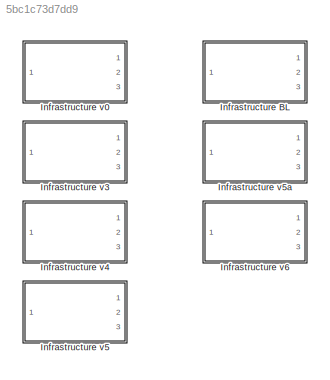
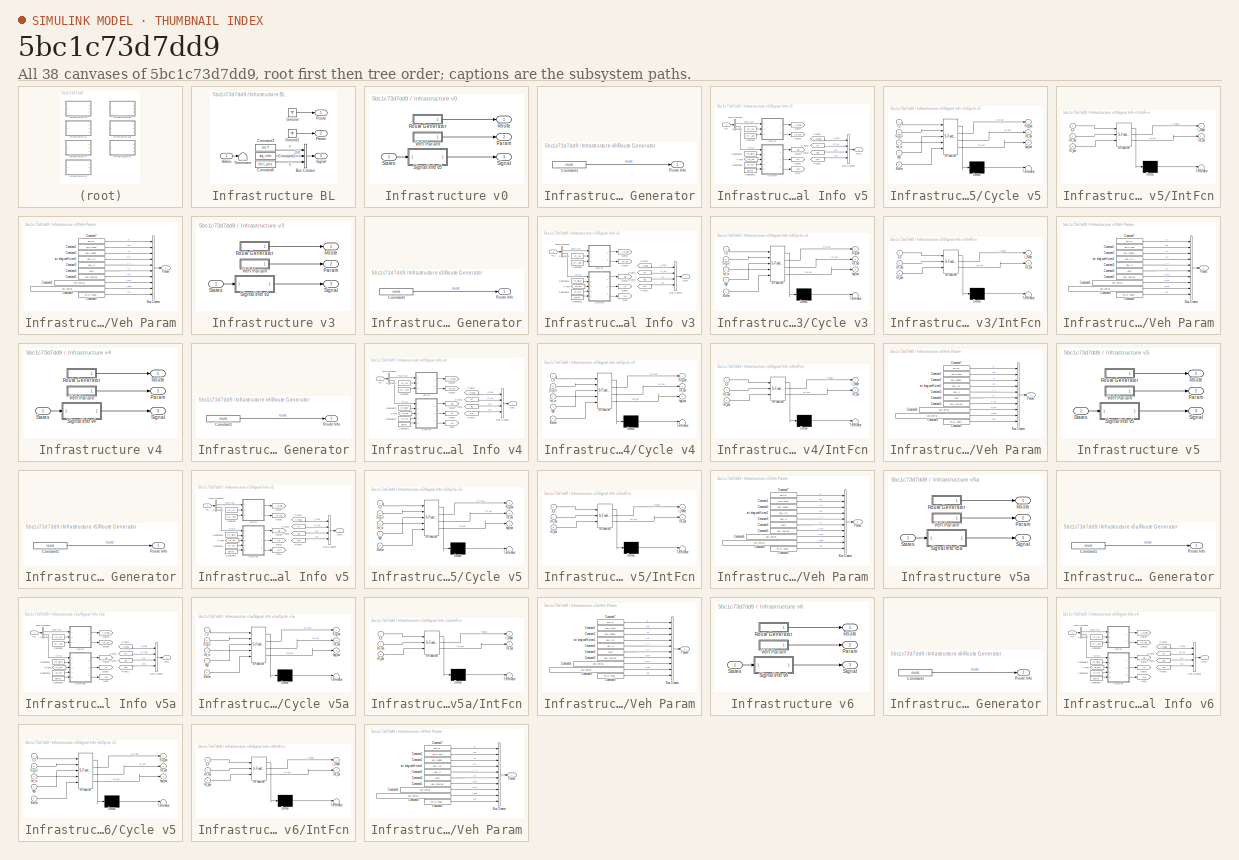
[diagram: thumbnail index - all 38 canvases of the model, root first then tree order]
MODEL slx_5bc1c73d7dd9
KIND library
CONFIG AbsTol = auto
CONFIG EnableMultiTasking = off
CONFIG FixedStep = auto
CONFIG MaxStep = auto
CONFIG MinStep = auto
CONFIG RelTol = 1e-3
CONFIG SampleTimeConstraint = Unconstrained
CONFIG Solver = VariableStepAuto
CONFIG SolverName = VariableStepAuto
CONFIG StartTime = 0.0
CONFIG StopTime = 10.0
BLOCK [SubSystem] Infrastructure BL
  Ports = [1, 3]
  RequestExecContextInheritance = off
  VariantControl = strcmpi(INFRASTRUCTURE,'BL')
BLOCK [BusCreator] Infrastructure BL/Bus Creator
  DisplayOption = bar
  InheritFromInputs = on
  Inputs = 3
  Ports = [3, 1]
BLOCK [Constant] Infrastructure BL/Constant1
  Value = sig_info
BLOCK [Constant] Infrastructure BL/Constant3
  Value = Int.Y
BLOCK [Constant] Infrastructure BL/Constant6
  Value = Int.I_pos
BLOCK [Ground] Infrastructure BL/Ground
BLOCK [Ground] Infrastructure BL/Ground1
BLOCK [Outport] Infrastructure BL/Param
  Port = 2
  VectorParamsAs1DForOutWhenUnconnected = off
BLOCK [Outport] Infrastructure BL/Route
  VectorParamsAs1DForOutWhenUnconnected = off
BLOCK [Outport] Infrastructure BL/Signal
  Port = 3
  VectorParamsAs1DForOutWhenUnconnected = off
BLOCK [Inport] Infrastructure BL/States
BLOCK [Terminator] Infrastructure BL/Terminator
BLOCK [SubSystem] Infrastructure v0
  Ports = [1, 3]
  RequestExecContextInheritance = off
  VariantControl = strcmpi(INFRASTRUCTURE,'MPC_v0')
BLOCK [Outport] Infrastructure v0/Param
  Port = 2
  VectorParamsAs1DForOutWhenUnconnected = off
BLOCK [Outport] Infrastructure v0/Route
  VectorParamsAs1DForOutWhenUnconnected = off
BLOCK [SubSystem] Infrastructure v0/Route Generator
  Ports = [0, 1]
  RequestExecContextInheritance = off
BLOCK [Constant] Infrastructure v0/Route Generator/Constant1
  Value = route
BLOCK [Outport] Infrastructure v0/Route Generator/Route Info
  VectorParamsAs1DForOutWhenUnconnected = off
BLOCK [Outport] Infrastructure v0/Signal
  Port = 3
  VectorParamsAs1DForOutWhenUnconnected = off
BLOCK [SubSystem] Infrastructure v0/Signal Info v5
  Ports = [1, 1]
  RequestExecContextInheritance = off
BLOCK [BusCreator] Infrastructure v0/Signal Info v5/Bus Creator
  DisplayOption = bar
  InheritFromInputs = on
  Inputs = 4
  Ports = [4, 1]
BLOCK [BusSelector] Infrastructure v0/Signal Info v5/Bus Selector
  OutputSignals = Position,Time
  Ports = [1, 2]
BLOCK [Constant] Infrastructure v0/Signal Info v5/Constant
  Value = Int.I_pos
BLOCK [Constant] Infrastructure v0/Signal Info v5/Constant1
  Value = Buffer
BLOCK [Constant] Infrastructure v0/Signal Info v5/Constant2
  Value = Int.Sig_in
BLOCK [Constant] Infrastructure v0/Signal Info v5/Constant3
  Value = Int.hyp
BLOCK [Constant] Infrastructure v0/Signal Info v5/Constant4
  Value = Int_ran
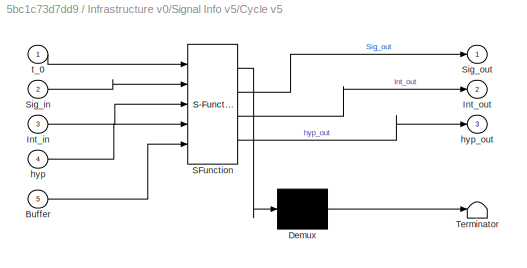
BLOCK [SubSystem] Infrastructure v0/Signal Info v5/Cycle v5
  ErrorFcn = Stateflow.Translate.translate
  PermitHierarchicalResolution = ExplicitOnly
  Ports = [5, 3]
  RequestExecContextInheritance = off
  SFBlockType = MATLAB Function
  TreatAsAtomicUnit = on
BLOCK [Demux] Infrastructure v0/Signal Info v5/Cycle v5/ Demux 
  Outputs = 1
  Ports = [1, 1]
BLOCK [S-Function] Infrastructure v0/Signal Info v5/Cycle v5/ SFunction 
  EnableBusSupport = off
  FunctionName = sf_sfun
  PortCounts = [5 4]
  Ports = [5, 4]
  SFcnIsStateOwnerBlock = off
  SFunctionDeploymentMode = off
  Tag = Stateflow S-Function 7
BLOCK [Terminator] Infrastructure v0/Signal Info v5/Cycle v5/ Terminator 
BLOCK [Inport] Infrastructure v0/Signal Info v5/Cycle v5/Buffer
  Port = 5
BLOCK [Inport] Infrastructure v0/Signal Info v5/Cycle v5/Int_in
  Port = 3
BLOCK [Outport] Infrastructure v0/Signal Info v5/Cycle v5/Int_out
  Port = 2
  VectorParamsAs1DForOutWhenUnconnected = off
BLOCK [Inport] Infrastructure v0/Signal Info v5/Cycle v5/Sig_in
  Port = 2
BLOCK [Outport] Infrastructure v0/Signal Info v5/Cycle v5/Sig_out
  VectorParamsAs1DForOutWhenUnconnected = off
BLOCK [Inport] Infrastructure v0/Signal Info v5/Cycle v5/hyp
  Port = 4
BLOCK [Outport] Infrastructure v0/Signal Info v5/Cycle v5/hyp_out
  Port = 3
  VectorParamsAs1DForOutWhenUnconnected = off
BLOCK [Inport] Infrastructure v0/Signal Info v5/Cycle v5/t_0
BLOCK [From] Infrastructure v0/Signal Info v5/From
  GotoTag = Int_out
BLOCK [From] Infrastructure v0/Signal Info v5/From1
  GotoTag = hyp
BLOCK [From] Infrastructure v0/Signal Info v5/From2
  GotoTag = I_mode
BLOCK [From] Infrastructure v0/Signal Info v5/From3
  GotoTag = sig
BLOCK [From] Infrastructure v0/Signal Info v5/From4
  GotoTag = Int
BLOCK [Goto] Infrastructure v0/Signal Info v5/Goto
  GotoTag = hyp
BLOCK [Goto] Infrastructure v0/Signal Info v5/Goto1
  GotoTag = Int
BLOCK [Goto] Infrastructure v0/Signal Info v5/Goto2
  GotoTag = sig
BLOCK [Goto] Infrastructure v0/Signal Info v5/Goto3
  GotoTag = Int_out
BLOCK [Goto] Infrastructure v0/Signal Info v5/Goto4
  GotoTag = I_mode
BLOCK [Inport] Infrastructure v0/Signal Info v5/In1
BLOCK [SubSystem] Infrastructure v0/Signal Info v5/IntFcn
  ErrorFcn = Stateflow.Translate.translate
  PermitHierarchicalResolution = ExplicitOnly
  Ports = [3, 2]
  RequestExecContextInheritance = off
  SFBlockType = MATLAB Function
  TreatAsAtomicUnit = on
BLOCK [Demux] Infrastructure v0/Signal Info v5/IntFcn/ Demux 
  Outputs = 1
  Ports = [1, 1]
BLOCK [S-Function] Infrastructure v0/Signal Info v5/IntFcn/ SFunction 
  EnableBusSupport = off
  FunctionName = sf_sfun
  PortCounts = [3 3]
  Ports = [3, 3]
  SFcnIsStateOwnerBlock = off
  SFunctionDeploymentMode = off
  Tag = Stateflow S-Function 8
BLOCK [Terminator] Infrastructure v0/Signal Info v5/IntFcn/ Terminator 
BLOCK [Outport] Infrastructure v0/Signal Info v5/IntFcn/I_mode
  VectorParamsAs1DForOutWhenUnconnected = off
BLOCK [Outport] Infrastructure v0/Signal Info v5/IntFcn/Int_out
  Port = 2
  VectorParamsAs1DForOutWhenUnconnected = off
BLOCK [Inport] Infrastructure v0/Signal Info v5/IntFcn/Int_pos
  Port = 3
BLOCK [Inport] Infrastructure v0/Signal Info v5/IntFcn/Int_ran
  Port = 2
BLOCK [Inport] Infrastructure v0/Signal Info v5/IntFcn/x_0
BLOCK [Outport] Infrastructure v0/Signal Info v5/Out1
  VectorParamsAs1DForOutWhenUnconnected = off
BLOCK [Inport] Infrastructure v0/States
BLOCK [SubSystem] Infrastructure v0/Veh Param
  Ports = [0, 1]
  RequestExecContextInheritance = off
BLOCK [BusCreator] Infrastructure v0/Veh Param/Bus Creator
  DisplayOption = bar
  InheritFromInputs = on
  Inputs = 10
  Ports = [10, 1]
BLOCK [Constant] Infrastructure v0/Veh Param/Constant1
  Value = ENV.rhoAir
BLOCK [Constant] Infrastructure v0/Veh Param/Constant2
  Value = VEH.vehicleMass
BLOCK [Constant] Infrastructure v0/Veh Param/Constant3
  Value = VEH.Af
BLOCK [Constant] Infrastructure v0/Veh Param/Constant4
  Value = .0057
BLOCK [Constant] Infrastructure v0/Veh Param/Constant5
  Value = VEH.tireRad
BLOCK [Constant] Infrastructure v0/Veh Param/Constant6
  Value = VEH.inertiaWheel+VEH.inertiaAxle
BLOCK [Constant] Infrastructure v0/Veh Param/Constant7
  Value = ENV.g
BLOCK [Constant] Infrastructure v0/Veh Param/Constant8
  Value = VEH.inertiaCrank+VEH.inertiaClutch+VEH.intertiaAux
BLOCK [Constant] Infrastructure v0/Veh Param/Constant9
  Value = TRAN.finalDrive
BLOCK [Outport] Infrastructure v0/Veh Param/Param
  VectorParamsAs1DForOutWhenUnconnected = off
BLOCK [Constant] Infrastructure v0/Veh Param/air drag coefficient1
  Value = VEH.Cd
BLOCK [SubSystem] Infrastructure v3
  Ports = [1, 3]
  RequestExecContextInheritance = off
  VariantControl = strcmpi(INFRASTRUCTURE,'MPC_GP_v3')
BLOCK [Outport] Infrastructure v3/Param
  Port = 2
  VectorParamsAs1DForOutWhenUnconnected = off
BLOCK [Outport] Infrastructure v3/Route
  VectorParamsAs1DForOutWhenUnconnected = off
BLOCK [SubSystem] Infrastructure v3/Route Generator
  Ports = [0, 1]
  RequestExecContextInheritance = off
BLOCK [Constant] Infrastructure v3/Route Generator/Constant1
  Value = route
BLOCK [Outport] Infrastructure v3/Route Generator/Route Info
  VectorParamsAs1DForOutWhenUnconnected = off
BLOCK [Outport] Infrastructure v3/Signal
  Port = 3
  VectorParamsAs1DForOutWhenUnconnected = off
BLOCK [SubSystem] Infrastructure v3/Signal Info v3
  Ports = [1, 1]
  RequestExecContextInheritance = off
BLOCK [BusCreator] Infrastructure v3/Signal Info v3/Bus Creator
  DisplayOption = bar
  InheritFromInputs = on
  Inputs = 4
  Ports = [4, 1]
BLOCK [BusSelector] Infrastructure v3/Signal Info v3/Bus Selector
  OutputSignals = Position,Time
  Ports = [1, 2]
BLOCK [Constant] Infrastructure v3/Signal Info v3/Constant
  Value = Int.I_pos
BLOCK [Constant] Infrastructure v3/Signal Info v3/Constant1
  Value = Buffer
BLOCK [Constant] Infrastructure v3/Signal Info v3/Constant2
  Value = Int.Sig_in
BLOCK [Constant] Infrastructure v3/Signal Info v3/Constant3
  Value = Int.hyp
BLOCK [Constant] Infrastructure v3/Signal Info v3/Constant4
  Value = Int_ran
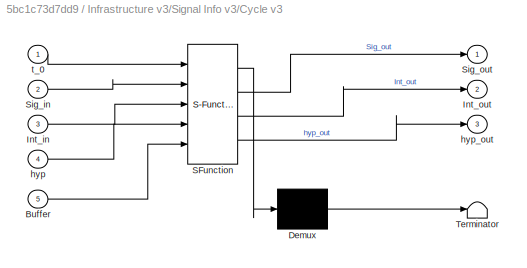
BLOCK [SubSystem] Infrastructure v3/Signal Info v3/Cycle v3
  ErrorFcn = Stateflow.Translate.translate
  PermitHierarchicalResolution = ExplicitOnly
  Ports = [5, 3]
  RequestExecContextInheritance = off
  SFBlockType = MATLAB Function
  TreatAsAtomicUnit = on
BLOCK [Demux] Infrastructure v3/Signal Info v3/Cycle v3/ Demux 
  Outputs = 1
  Ports = [1, 1]
BLOCK [S-Function] Infrastructure v3/Signal Info v3/Cycle v3/ SFunction 
  EnableBusSupport = off
  FunctionName = sf_sfun
  PortCounts = [5 4]
  Ports = [5, 4]
  SFcnIsStateOwnerBlock = off
  SFunctionDeploymentMode = off
  Tag = Stateflow S-Function 2
BLOCK [Terminator] Infrastructure v3/Signal Info v3/Cycle v3/ Terminator 
BLOCK [Inport] Infrastructure v3/Signal Info v3/Cycle v3/Buffer
  Port = 5
BLOCK [Inport] Infrastructure v3/Signal Info v3/Cycle v3/Int_in
  Port = 3
BLOCK [Outport] Infrastructure v3/Signal Info v3/Cycle v3/Int_out
  Port = 2
  VectorParamsAs1DForOutWhenUnconnected = off
BLOCK [Inport] Infrastructure v3/Signal Info v3/Cycle v3/Sig_in
  Port = 2
BLOCK [Outport] Infrastructure v3/Signal Info v3/Cycle v3/Sig_out
  VectorParamsAs1DForOutWhenUnconnected = off
BLOCK [Inport] Infrastructure v3/Signal Info v3/Cycle v3/hyp
  Port = 4
BLOCK [Outport] Infrastructure v3/Signal Info v3/Cycle v3/hyp_out
  Port = 3
  VectorParamsAs1DForOutWhenUnconnected = off
BLOCK [Inport] Infrastructure v3/Signal Info v3/Cycle v3/t_0
BLOCK [From] Infrastructure v3/Signal Info v3/From
  GotoTag = Int_out
BLOCK [From] Infrastructure v3/Signal Info v3/From1
  GotoTag = hyp
BLOCK [From] Infrastructure v3/Signal Info v3/From2
  GotoTag = I_mode
BLOCK [From] Infrastructure v3/Signal Info v3/From3
  GotoTag = sig
BLOCK [From] Infrastructure v3/Signal Info v3/From4
  GotoTag = Int
BLOCK [Goto] Infrastructure v3/Signal Info v3/Goto
  GotoTag = hyp
BLOCK [Goto] Infrastructure v3/Signal Info v3/Goto1
  GotoTag = Int
BLOCK [Goto] Infrastructure v3/Signal Info v3/Goto2
  GotoTag = sig
BLOCK [Goto] Infrastructure v3/Signal Info v3/Goto3
  GotoTag = Int_out
BLOCK [Goto] Infrastructure v3/Signal Info v3/Goto4
  GotoTag = I_mode
BLOCK [Inport] Infrastructure v3/Signal Info v3/In1
BLOCK [SubSystem] Infrastructure v3/Signal Info v3/IntFcn
  ErrorFcn = Stateflow.Translate.translate
  PermitHierarchicalResolution = ExplicitOnly
  Ports = [3, 2]
  RequestExecContextInheritance = off
  SFBlockType = MATLAB Function
  TreatAsAtomicUnit = on
BLOCK [Demux] Infrastructure v3/Signal Info v3/IntFcn/ Demux 
  Outputs = 1
  Ports = [1, 1]
BLOCK [S-Function] Infrastructure v3/Signal Info v3/IntFcn/ SFunction 
  EnableBusSupport = off
  FunctionName = sf_sfun
  PortCounts = [3 3]
  Ports = [3, 3]
  SFcnIsStateOwnerBlock = off
  SFunctionDeploymentMode = off
  Tag = Stateflow S-Function 1
BLOCK [Terminator] Infrastructure v3/Signal Info v3/IntFcn/ Terminator 
BLOCK [Outport] Infrastructure v3/Signal Info v3/IntFcn/I_mode
  VectorParamsAs1DForOutWhenUnconnected = off
BLOCK [Outport] Infrastructure v3/Signal Info v3/IntFcn/Int_out
  Port = 2
  VectorParamsAs1DForOutWhenUnconnected = off
BLOCK [Inport] Infrastructure v3/Signal Info v3/IntFcn/Int_pos
  Port = 3
BLOCK [Inport] Infrastructure v3/Signal Info v3/IntFcn/Int_ran
  Port = 2
BLOCK [Inport] Infrastructure v3/Signal Info v3/IntFcn/x_0
BLOCK [Outport] Infrastructure v3/Signal Info v3/Out1
  VectorParamsAs1DForOutWhenUnconnected = off
BLOCK [Inport] Infrastructure v3/States
BLOCK [SubSystem] Infrastructure v3/Veh Param
  Ports = [0, 1]
  RequestExecContextInheritance = off
BLOCK [BusCreator] Infrastructure v3/Veh Param/Bus Creator
  DisplayOption = bar
  InheritFromInputs = on
  Inputs = 10
  Ports = [10, 1]
BLOCK [Constant] Infrastructure v3/Veh Param/Constant1
  Value = ENV.rhoAir
BLOCK [Constant] Infrastructure v3/Veh Param/Constant2
  Value = VEH.vehicleMass
BLOCK [Constant] Infrastructure v3/Veh Param/Constant3
  Value = VEH.Af
BLOCK [Constant] Infrastructure v3/Veh Param/Constant4
  Value = .0057
BLOCK [Constant] Infrastructure v3/Veh Param/Constant5
  Value = VEH.tireRad
BLOCK [Constant] Infrastructure v3/Veh Param/Constant6
  Value = VEH.inertiaWheel+VEH.inertiaAxle
BLOCK [Constant] Infrastructure v3/Veh Param/Constant7
  Value = ENV.g
BLOCK [Constant] Infrastructure v3/Veh Param/Constant8
  Value = VEH.inertiaCrank+VEH.inertiaClutch+VEH.intertiaAux
BLOCK [Constant] Infrastructure v3/Veh Param/Constant9
  Value = TRAN.finalDrive
BLOCK [Outport] Infrastructure v3/Veh Param/Param
  VectorParamsAs1DForOutWhenUnconnected = off
BLOCK [Constant] Infrastructure v3/Veh Param/air drag coefficient1
  Value = VEH.Cd
BLOCK [SubSystem] Infrastructure v4
  Ports = [1, 3]
  RequestExecContextInheritance = off
BLOCK [Outport] Infrastructure v4/Param
  Port = 2
  VectorParamsAs1DForOutWhenUnconnected = off
BLOCK [Outport] Infrastructure v4/Route
  VectorParamsAs1DForOutWhenUnconnected = off
BLOCK [SubSystem] Infrastructure v4/Route Generator
  Ports = [0, 1]
  RequestExecContextInheritance = off
BLOCK [Constant] Infrastructure v4/Route Generator/Constant1
  Value = route
BLOCK [Outport] Infrastructure v4/Route Generator/Route Info
  VectorParamsAs1DForOutWhenUnconnected = off
BLOCK [Outport] Infrastructure v4/Signal
  Port = 3
  VectorParamsAs1DForOutWhenUnconnected = off
BLOCK [SubSystem] Infrastructure v4/Signal Info v4
  Ports = [1, 1]
  RequestExecContextInheritance = off
BLOCK [BusCreator] Infrastructure v4/Signal Info v4/Bus Creator
  DisplayOption = bar
  InheritFromInputs = on
  Inputs = 4
  Ports = [4, 1]
BLOCK [BusSelector] Infrastructure v4/Signal Info v4/Bus Selector
  OutputSignals = Position,Time
  Ports = [1, 2]
BLOCK [Constant] Infrastructure v4/Signal Info v4/Constant
  Value = Int.I_pos
BLOCK [Constant] Infrastructure v4/Signal Info v4/Constant1
  Value = Buffer
BLOCK [Constant] Infrastructure v4/Signal Info v4/Constant2
  Value = Int.Sig_in
BLOCK [Constant] Infrastructure v4/Signal Info v4/Constant3
  Value = Int.hyp
BLOCK [Constant] Infrastructure v4/Signal Info v4/Constant4
  Value = Int_ran
BLOCK [SubSystem] Infrastructure v4/Signal Info v4/Cycle v4
  ErrorFcn = Stateflow.Translate.translate
  PermitHierarchicalResolution = ExplicitOnly
  Ports = [5, 3]
  RequestExecContextInheritance = off
  SFBlockType = MATLAB Function
  TreatAsAtomicUnit = on
BLOCK [Demux] Infrastructure v4/Signal Info v4/Cycle v4/ Demux 
  Outputs = 1
  Ports = [1, 1]
BLOCK [S-Function] Infrastructure v4/Signal Info v4/Cycle v4/ SFunction 
  EnableBusSupport = off
  FunctionName = sf_sfun
  PortCounts = [5 4]
  Ports = [5, 4]
  SFcnIsStateOwnerBlock = off
  SFunctionDeploymentMode = off
  Tag = Stateflow S-Function 3
BLOCK [Terminator] Infrastructure v4/Signal Info v4/Cycle v4/ Terminator 
BLOCK [Inport] Infrastructure v4/Signal Info v4/Cycle v4/Buffer
  Port = 5
BLOCK [Inport] Infrastructure v4/Signal Info v4/Cycle v4/Int_in
  Port = 3
BLOCK [Outport] Infrastructure v4/Signal Info v4/Cycle v4/Int_out
  Port = 2
  VectorParamsAs1DForOutWhenUnconnected = off
BLOCK [Inport] Infrastructure v4/Signal Info v4/Cycle v4/Sig_in
  Port = 2
BLOCK [Outport] Infrastructure v4/Signal Info v4/Cycle v4/Sig_out
  VectorParamsAs1DForOutWhenUnconnected = off
BLOCK [Inport] Infrastructure v4/Signal Info v4/Cycle v4/hyp
  Port = 4
BLOCK [Outport] Infrastructure v4/Signal Info v4/Cycle v4/hyp_out
  Port = 3
  VectorParamsAs1DForOutWhenUnconnected = off
BLOCK [Inport] Infrastructure v4/Signal Info v4/Cycle v4/t_0
BLOCK [From] Infrastructure v4/Signal Info v4/From
  GotoTag = Int_out
BLOCK [From] Infrastructure v4/Signal Info v4/From1
  GotoTag = hyp
BLOCK [From] Infrastructure v4/Signal Info v4/From2
  GotoTag = I_mode
BLOCK [From] Infrastructure v4/Signal Info v4/From3
  GotoTag = sig
BLOCK [From] Infrastructure v4/Signal Info v4/From4
  GotoTag = Int
BLOCK [Goto] Infrastructure v4/Signal Info v4/Goto
  GotoTag = hyp
BLOCK [Goto] Infrastructure v4/Signal Info v4/Goto1
  GotoTag = Int
BLOCK [Goto] Infrastructure v4/Signal Info v4/Goto2
  GotoTag = sig
BLOCK [Goto] Infrastructure v4/Signal Info v4/Goto3
  GotoTag = Int_out
BLOCK [Goto] Infrastructure v4/Signal Info v4/Goto4
  GotoTag = I_mode
BLOCK [Inport] Infrastructure v4/Signal Info v4/In1
BLOCK [SubSystem] Infrastructure v4/Signal Info v4/IntFcn
  ErrorFcn = Stateflow.Translate.translate
  PermitHierarchicalResolution = ExplicitOnly
  Ports = [3, 2]
  RequestExecContextInheritance = off
  SFBlockType = MATLAB Function
  TreatAsAtomicUnit = on
BLOCK [Demux] Infrastructure v4/Signal Info v4/IntFcn/ Demux 
  Outputs = 1
  Ports = [1, 1]
BLOCK [S-Function] Infrastructure v4/Signal Info v4/IntFcn/ SFunction 
  EnableBusSupport = off
  FunctionName = sf_sfun
  PortCounts = [3 3]
  Ports = [3, 3]
  SFcnIsStateOwnerBlock = off
  SFunctionDeploymentMode = off
  Tag = Stateflow S-Function 4
BLOCK [Terminator] Infrastructure v4/Signal Info v4/IntFcn/ Terminator 
BLOCK [Outport] Infrastructure v4/Signal Info v4/IntFcn/I_mode
  VectorParamsAs1DForOutWhenUnconnected = off
BLOCK [Outport] Infrastructure v4/Signal Info v4/IntFcn/Int_out
  Port = 2
  VectorParamsAs1DForOutWhenUnconnected = off
BLOCK [Inport] Infrastructure v4/Signal Info v4/IntFcn/Int_pos
  Port = 3
BLOCK [Inport] Infrastructure v4/Signal Info v4/IntFcn/Int_ran
  Port = 2
BLOCK [Inport] Infrastructure v4/Signal Info v4/IntFcn/x_0
BLOCK [Outport] Infrastructure v4/Signal Info v4/Out1
  VectorParamsAs1DForOutWhenUnconnected = off
BLOCK [Inport] Infrastructure v4/States
BLOCK [SubSystem] Infrastructure v4/Veh Param
  Ports = [0, 1]
  RequestExecContextInheritance = off
BLOCK [BusCreator] Infrastructure v4/Veh Param/Bus Creator
  DisplayOption = bar
  InheritFromInputs = on
  Inputs = 10
  Ports = [10, 1]
BLOCK [Constant] Infrastructure v4/Veh Param/Constant1
  Value = ENV.rhoAir
BLOCK [Constant] Infrastructure v4/Veh Param/Constant2
  Value = VEH.vehicleMass
BLOCK [Constant] Infrastructure v4/Veh Param/Constant3
  Value = VEH.Af
BLOCK [Constant] Infrastructure v4/Veh Param/Constant4
  Value = .0057
BLOCK [Constant] Infrastructure v4/Veh Param/Constant5
  Value = VEH.tireRad
BLOCK [Constant] Infrastructure v4/Veh Param/Constant6
  Value = VEH.inertiaWheel+VEH.inertiaAxle
BLOCK [Constant] Infrastructure v4/Veh Param/Constant7
  Value = ENV.g
BLOCK [Constant] Infrastructure v4/Veh Param/Constant8
  Value = VEH.inertiaCrank+VEH.inertiaClutch+VEH.intertiaAux
BLOCK [Constant] Infrastructure v4/Veh Param/Constant9
  Value = TRAN.finalDrive
BLOCK [Outport] Infrastructure v4/Veh Param/Param
  VectorParamsAs1DForOutWhenUnconnected = off
BLOCK [Constant] Infrastructure v4/Veh Param/air drag coefficient1
  Value = VEH.Cd
BLOCK [SubSystem] Infrastructure v5
  Ports = [1, 3]
  RequestExecContextInheritance = off
  VariantControl = strcmpi(INFRASTRUCTURE,'MPC_GP_v5')
BLOCK [Outport] Infrastructure v5/Param
  Port = 2
  VectorParamsAs1DForOutWhenUnconnected = off
BLOCK [Outport] Infrastructure v5/Route
  VectorParamsAs1DForOutWhenUnconnected = off
BLOCK [SubSystem] Infrastructure v5/Route Generator
  Ports = [0, 1]
  RequestExecContextInheritance = off
BLOCK [Constant] Infrastructure v5/Route Generator/Constant1
  Value = route
BLOCK [Outport] Infrastructure v5/Route Generator/Route Info
  VectorParamsAs1DForOutWhenUnconnected = off
BLOCK [Outport] Infrastructure v5/Signal
  Port = 3
  VectorParamsAs1DForOutWhenUnconnected = off
BLOCK [SubSystem] Infrastructure v5/Signal Info v5
  Ports = [1, 1]
  RequestExecContextInheritance = off
BLOCK [BusCreator] Infrastructure v5/Signal Info v5/Bus Creator
  DisplayOption = bar
  InheritFromInputs = on
  Inputs = 4
  Ports = [4, 1]
BLOCK [BusSelector] Infrastructure v5/Signal Info v5/Bus Selector
  OutputSignals = Position,Time
  Ports = [1, 2]
BLOCK [Constant] Infrastructure v5/Signal Info v5/Constant
  Value = Int.I_pos
BLOCK [Constant] Infrastructure v5/Signal Info v5/Constant1
  Value = Buffer
BLOCK [Constant] Infrastructure v5/Signal Info v5/Constant2
  Value = Int.Sig_in
BLOCK [Constant] Infrastructure v5/Signal Info v5/Constant3
  Value = Int.hyp
BLOCK [Constant] Infrastructure v5/Signal Info v5/Constant4
  Value = Int_ran
BLOCK [SubSystem] Infrastructure v5/Signal Info v5/Cycle v5
  ErrorFcn = Stateflow.Translate.translate
  PermitHierarchicalResolution = ExplicitOnly
  Ports = [5, 3]
  RequestExecContextInheritance = off
  SFBlockType = MATLAB Function
  TreatAsAtomicUnit = on
BLOCK [Demux] Infrastructure v5/Signal Info v5/Cycle v5/ Demux 
  Outputs = 1
  Ports = [1, 1]
BLOCK [S-Function] Infrastructure v5/Signal Info v5/Cycle v5/ SFunction 
  EnableBusSupport = off
  FunctionName = sf_sfun
  PortCounts = [5 4]
  Ports = [5, 4]
  SFcnIsStateOwnerBlock = off
  SFunctionDeploymentMode = off
  Tag = Stateflow S-Function 5
BLOCK [Terminator] Infrastructure v5/Signal Info v5/Cycle v5/ Terminator 
BLOCK [Inport] Infrastructure v5/Signal Info v5/Cycle v5/Buffer
  Port = 5
BLOCK [Inport] Infrastructure v5/Signal Info v5/Cycle v5/Int_in
  Port = 3
BLOCK [Outport] Infrastructure v5/Signal Info v5/Cycle v5/Int_out
  Port = 2
  VectorParamsAs1DForOutWhenUnconnected = off
BLOCK [Inport] Infrastructure v5/Signal Info v5/Cycle v5/Sig_in
  Port = 2
BLOCK [Outport] Infrastructure v5/Signal Info v5/Cycle v5/Sig_out
  VectorParamsAs1DForOutWhenUnconnected = off
BLOCK [Inport] Infrastructure v5/Signal Info v5/Cycle v5/hyp
  Port = 4
BLOCK [Outport] Infrastructure v5/Signal Info v5/Cycle v5/hyp_out
  Port = 3
  VectorParamsAs1DForOutWhenUnconnected = off
BLOCK [Inport] Infrastructure v5/Signal Info v5/Cycle v5/t_0
BLOCK [From] Infrastructure v5/Signal Info v5/From
  GotoTag = Int_out
BLOCK [From] Infrastructure v5/Signal Info v5/From1
  GotoTag = hyp
BLOCK [From] Infrastructure v5/Signal Info v5/From2
  GotoTag = I_mode
BLOCK [From] Infrastructure v5/Signal Info v5/From3
  GotoTag = sig
BLOCK [From] Infrastructure v5/Signal Info v5/From4
  GotoTag = Int
BLOCK [Goto] Infrastructure v5/Signal Info v5/Goto
  GotoTag = hyp
BLOCK [Goto] Infrastructure v5/Signal Info v5/Goto1
  GotoTag = Int
BLOCK [Goto] Infrastructure v5/Signal Info v5/Goto2
  GotoTag = sig
BLOCK [Goto] Infrastructure v5/Signal Info v5/Goto3
  GotoTag = Int_out
BLOCK [Goto] Infrastructure v5/Signal Info v5/Goto4
  GotoTag = I_mode
BLOCK [Inport] Infrastructure v5/Signal Info v5/In1
BLOCK [SubSystem] Infrastructure v5/Signal Info v5/IntFcn
  ErrorFcn = Stateflow.Translate.translate
  PermitHierarchicalResolution = ExplicitOnly
  Ports = [3, 2]
  RequestExecContextInheritance = off
  SFBlockType = MATLAB Function
  TreatAsAtomicUnit = on
BLOCK [Demux] Infrastructure v5/Signal Info v5/IntFcn/ Demux 
  Outputs = 1
  Ports = [1, 1]
BLOCK [S-Function] Infrastructure v5/Signal Info v5/IntFcn/ SFunction 
  EnableBusSupport = off
  FunctionName = sf_sfun
  PortCounts = [3 3]
  Ports = [3, 3]
  SFcnIsStateOwnerBlock = off
  SFunctionDeploymentMode = off
  Tag = Stateflow S-Function 6
BLOCK [Terminator] Infrastructure v5/Signal Info v5/IntFcn/ Terminator 
BLOCK [Outport] Infrastructure v5/Signal Info v5/IntFcn/I_mode
  VectorParamsAs1DForOutWhenUnconnected = off
BLOCK [Outport] Infrastructure v5/Signal Info v5/IntFcn/Int_out
  Port = 2
  VectorParamsAs1DForOutWhenUnconnected = off
BLOCK [Inport] Infrastructure v5/Signal Info v5/IntFcn/Int_pos
  Port = 3
BLOCK [Inport] Infrastructure v5/Signal Info v5/IntFcn/Int_ran
  Port = 2
BLOCK [Inport] Infrastructure v5/Signal Info v5/IntFcn/x_0
BLOCK [Outport] Infrastructure v5/Signal Info v5/Out1
  VectorParamsAs1DForOutWhenUnconnected = off
BLOCK [Inport] Infrastructure v5/States
BLOCK [SubSystem] Infrastructure v5/Veh Param
  Ports = [0, 1]
  RequestExecContextInheritance = off
BLOCK [BusCreator] Infrastructure v5/Veh Param/Bus Creator
  DisplayOption = bar
  InheritFromInputs = on
  Inputs = 10
  Ports = [10, 1]
BLOCK [Constant] Infrastructure v5/Veh Param/Constant1
  Value = ENV.rhoAir
BLOCK [Constant] Infrastructure v5/Veh Param/Constant2
  Value = VEH.vehicleMass
BLOCK [Constant] Infrastructure v5/Veh Param/Constant3
  Value = VEH.Af
BLOCK [Constant] Infrastructure v5/Veh Param/Constant4
  Value = .0057
BLOCK [Constant] Infrastructure v5/Veh Param/Constant5
  Value = VEH.tireRad
BLOCK [Constant] Infrastructure v5/Veh Param/Constant6
  Value = VEH.inertiaWheel+VEH.inertiaAxle
BLOCK [Constant] Infrastructure v5/Veh Param/Constant7
  Value = ENV.g
BLOCK [Constant] Infrastructure v5/Veh Param/Constant8
  Value = VEH.inertiaCrank+VEH.inertiaClutch+VEH.intertiaAux
BLOCK [Constant] Infrastructure v5/Veh Param/Constant9
  Value = TRAN.finalDrive
BLOCK [Outport] Infrastructure v5/Veh Param/Param
  VectorParamsAs1DForOutWhenUnconnected = off
BLOCK [Constant] Infrastructure v5/Veh Param/air drag coefficient1
  Value = VEH.Cd
BLOCK [SubSystem] Infrastructure v5a
  Ports = [1, 3]
  RequestExecContextInheritance = off
  VariantControl = strcmpi(INFRASTRUCTURE,'MPC_GP_v5a')
BLOCK [Outport] Infrastructure v5a/Param
  Port = 2
  VectorParamsAs1DForOutWhenUnconnected = off
BLOCK [Outport] Infrastructure v5a/Route
  VectorParamsAs1DForOutWhenUnconnected = off
BLOCK [SubSystem] Infrastructure v5a/Route Generator
  Ports = [0, 1]
  RequestExecContextInheritance = off
BLOCK [Constant] Infrastructure v5a/Route Generator/Constant1
  Value = route
BLOCK [Outport] Infrastructure v5a/Route Generator/Route Info
  VectorParamsAs1DForOutWhenUnconnected = off
BLOCK [Outport] Infrastructure v5a/Signal
  Port = 3
  VectorParamsAs1DForOutWhenUnconnected = off
BLOCK [SubSystem] Infrastructure v5a/Signal Info v5a
  Ports = [1, 1]
  RequestExecContextInheritance = off
BLOCK [BusCreator] Infrastructure v5a/Signal Info v5a/Bus Creator
  DisplayOption = bar
  InheritFromInputs = on
  Inputs = 4
  Ports = [4, 1]
BLOCK [BusSelector] Infrastructure v5a/Signal Info v5a/Bus Selector
  OutputSignals = Position,Time
  Ports = [1, 2]
BLOCK [Constant] Infrastructure v5a/Signal Info v5a/Constant
  Value = Int.I_pos
BLOCK [Constant] Infrastructure v5a/Signal Info v5a/Constant1
  Value = Buffer
BLOCK [Constant] Infrastructure v5a/Signal Info v5a/Constant2
  Value = Int.Sig_in
BLOCK [Constant] Infrastructure v5a/Signal Info v5a/Constant3
  Value = Int.hyp
BLOCK [Constant] Infrastructure v5a/Signal Info v5a/Constant4
  Value = Int_ran
BLOCK [SubSystem] Infrastructure v5a/Signal Info v5a/Cycle v5a
  ErrorFcn = Stateflow.Translate.translate
  PermitHierarchicalResolution = ExplicitOnly
  Ports = [5, 3]
  RequestExecContextInheritance = off
  SFBlockType = MATLAB Function
  TreatAsAtomicUnit = on
BLOCK [Demux] Infrastructure v5a/Signal Info v5a/Cycle v5a/ Demux 
  Outputs = 1
  Ports = [1, 1]
BLOCK [S-Function] Infrastructure v5a/Signal Info v5a/Cycle v5a/ SFunction 
  EnableBusSupport = off
  FunctionName = sf_sfun
  PortCounts = [5 4]
  Ports = [5, 4]
  SFcnIsStateOwnerBlock = off
  SFunctionDeploymentMode = off
  Tag = Stateflow S-Function 11
BLOCK [Terminator] Infrastructure v5a/Signal Info v5a/Cycle v5a/ Terminator 
BLOCK [Inport] Infrastructure v5a/Signal Info v5a/Cycle v5a/Buffer
  Port = 5
BLOCK [Inport] Infrastructure v5a/Signal Info v5a/Cycle v5a/Int_in
  Port = 3
BLOCK [Outport] Infrastructure v5a/Signal Info v5a/Cycle v5a/Int_out
  Port = 2
  VectorParamsAs1DForOutWhenUnconnected = off
BLOCK [Inport] Infrastructure v5a/Signal Info v5a/Cycle v5a/Sig_in
  Port = 2
BLOCK [Outport] Infrastructure v5a/Signal Info v5a/Cycle v5a/Sig_out
  VectorParamsAs1DForOutWhenUnconnected = off
BLOCK [Inport] Infrastructure v5a/Signal Info v5a/Cycle v5a/hyp
  Port = 4
BLOCK [Outport] Infrastructure v5a/Signal Info v5a/Cycle v5a/hyp_out
  Port = 3
  VectorParamsAs1DForOutWhenUnconnected = off
BLOCK [Inport] Infrastructure v5a/Signal Info v5a/Cycle v5a/t_0
BLOCK [From] Infrastructure v5a/Signal Info v5a/From
  GotoTag = Int_out
BLOCK [From] Infrastructure v5a/Signal Info v5a/From1
  GotoTag = hyp
BLOCK [From] Infrastructure v5a/Signal Info v5a/From2
  GotoTag = I_mode
BLOCK [From] Infrastructure v5a/Signal Info v5a/From3
  GotoTag = sig
BLOCK [From] Infrastructure v5a/Signal Info v5a/From4
  GotoTag = Int
BLOCK [Goto] Infrastructure v5a/Signal Info v5a/Goto
  GotoTag = hyp
BLOCK [Goto] Infrastructure v5a/Signal Info v5a/Goto1
  GotoTag = Int
BLOCK [Goto] Infrastructure v5a/Signal Info v5a/Goto2
  GotoTag = sig
BLOCK [Goto] Infrastructure v5a/Signal Info v5a/Goto3
  GotoTag = Int_out
BLOCK [Goto] Infrastructure v5a/Signal Info v5a/Goto4
  GotoTag = I_mode
BLOCK [Inport] Infrastructure v5a/Signal Info v5a/In1
BLOCK [SubSystem] Infrastructure v5a/Signal Info v5a/IntFcn
  ErrorFcn = Stateflow.Translate.translate
  PermitHierarchicalResolution = ExplicitOnly
  Ports = [3, 2]
  RequestExecContextInheritance = off
  SFBlockType = MATLAB Function
  TreatAsAtomicUnit = on
BLOCK [Demux] Infrastructure v5a/Signal Info v5a/IntFcn/ Demux 
  Outputs = 1
  Ports = [1, 1]
BLOCK [S-Function] Infrastructure v5a/Signal Info v5a/IntFcn/ SFunction 
  EnableBusSupport = off
  FunctionName = sf_sfun
  PortCounts = [3 3]
  Ports = [3, 3]
  SFcnIsStateOwnerBlock = off
  SFunctionDeploymentMode = off
  Tag = Stateflow S-Function 12
BLOCK [Terminator] Infrastructure v5a/Signal Info v5a/IntFcn/ Terminator 
BLOCK [Outport] Infrastructure v5a/Signal Info v5a/IntFcn/I_mode
  VectorParamsAs1DForOutWhenUnconnected = off
BLOCK [Outport] Infrastructure v5a/Signal Info v5a/IntFcn/Int_out
  Port = 2
  VectorParamsAs1DForOutWhenUnconnected = off
BLOCK [Inport] Infrastructure v5a/Signal Info v5a/IntFcn/Int_pos
  Port = 3
BLOCK [Inport] Infrastructure v5a/Signal Info v5a/IntFcn/Int_ran
  Port = 2
BLOCK [Inport] Infrastructure v5a/Signal Info v5a/IntFcn/x_0
BLOCK [Outport] Infrastructure v5a/Signal Info v5a/Out1
  VectorParamsAs1DForOutWhenUnconnected = off
BLOCK [Inport] Infrastructure v5a/States
BLOCK [SubSystem] Infrastructure v5a/Veh Param
  Ports = [0, 1]
  RequestExecContextInheritance = off
BLOCK [BusCreator] Infrastructure v5a/Veh Param/Bus Creator
  DisplayOption = bar
  InheritFromInputs = on
  Inputs = 10
  Ports = [10, 1]
BLOCK [Constant] Infrastructure v5a/Veh Param/Constant1
  Value = ENV.rhoAir
BLOCK [Constant] Infrastructure v5a/Veh Param/Constant2
  Value = VEH.vehicleMass
BLOCK [Constant] Infrastructure v5a/Veh Param/Constant3
  Value = VEH.Af
BLOCK [Constant] Infrastructure v5a/Veh Param/Constant4
  Value = .0057
BLOCK [Constant] Infrastructure v5a/Veh Param/Constant5
  Value = VEH.tireRad
BLOCK [Constant] Infrastructure v5a/Veh Param/Constant6
  Value = VEH.inertiaWheel+VEH.inertiaAxle
BLOCK [Constant] Infrastructure v5a/Veh Param/Constant7
  Value = ENV.g
BLOCK [Constant] Infrastructure v5a/Veh Param/Constant8
  Value = VEH.inertiaCrank+VEH.inertiaClutch+VEH.intertiaAux
BLOCK [Constant] Infrastructure v5a/Veh Param/Constant9
  Value = TRAN.finalDrive
BLOCK [Outport] Infrastructure v5a/Veh Param/Param
  VectorParamsAs1DForOutWhenUnconnected = off
BLOCK [Constant] Infrastructure v5a/Veh Param/air drag coefficient1
  Value = VEH.Cd
BLOCK [SubSystem] Infrastructure v6
  Ports = [1, 3]
  RequestExecContextInheritance = off
  VariantControl = strcmpi(INFRASTRUCTURE,'MPC_GP_v6')
BLOCK [Outport] Infrastructure v6/Param
  Port = 2
  VectorParamsAs1DForOutWhenUnconnected = off
BLOCK [Outport] Infrastructure v6/Route
  VectorParamsAs1DForOutWhenUnconnected = off
BLOCK [SubSystem] Infrastructure v6/Route Generator
  Ports = [0, 1]
  RequestExecContextInheritance = off
BLOCK [Constant] Infrastructure v6/Route Generator/Constant1
  Value = route
BLOCK [Outport] Infrastructure v6/Route Generator/Route Info
  VectorParamsAs1DForOutWhenUnconnected = off
BLOCK [Outport] Infrastructure v6/Signal
  Port = 3
  VectorParamsAs1DForOutWhenUnconnected = off
BLOCK [SubSystem] Infrastructure v6/Signal Info v6
  Ports = [1, 1]
  RequestExecContextInheritance = off
BLOCK [BusCreator] Infrastructure v6/Signal Info v6/Bus Creator
  DisplayOption = bar
  InheritFromInputs = on
  Inputs = 4
  Ports = [4, 1]
BLOCK [BusSelector] Infrastructure v6/Signal Info v6/Bus Selector
  OutputSignals = Position,Time
  Ports = [1, 2]
BLOCK [Constant] Infrastructure v6/Signal Info v6/Constant
  Value = Int.I_pos
BLOCK [Constant] Infrastructure v6/Signal Info v6/Constant1
  Value = Buffer
BLOCK [Constant] Infrastructure v6/Signal Info v6/Constant2
  Value = Int.Sig_in
BLOCK [Constant] Infrastructure v6/Signal Info v6/Constant3
  Value = Int.hyp
BLOCK [Constant] Infrastructure v6/Signal Info v6/Constant4
  Value = Int_ran
BLOCK [SubSystem] Infrastructure v6/Signal Info v6/Cycle v5
  ErrorFcn = Stateflow.Translate.translate
  PermitHierarchicalResolution = ExplicitOnly
  Ports = [5, 3]
  RequestExecContextInheritance = off
  SFBlockType = MATLAB Function
  TreatAsAtomicUnit = on
BLOCK [Demux] Infrastructure v6/Signal Info v6/Cycle v5/ Demux 
  Outputs = 1
  Ports = [1, 1]
BLOCK [S-Function] Infrastructure v6/Signal Info v6/Cycle v5/ SFunction 
  EnableBusSupport = off
  FunctionName = sf_sfun
  PortCounts = [5 4]
  Ports = [5, 4]
  SFcnIsStateOwnerBlock = off
  SFunctionDeploymentMode = off
  Tag = Stateflow S-Function 9
BLOCK [Terminator] Infrastructure v6/Signal Info v6/Cycle v5/ Terminator 
BLOCK [Inport] Infrastructure v6/Signal Info v6/Cycle v5/Buffer
  Port = 5
BLOCK [Inport] Infrastructure v6/Signal Info v6/Cycle v5/Int_in
  Port = 3
BLOCK [Outport] Infrastructure v6/Signal Info v6/Cycle v5/Int_out
  Port = 2
  VectorParamsAs1DForOutWhenUnconnected = off
BLOCK [Inport] Infrastructure v6/Signal Info v6/Cycle v5/Sig_in
  Port = 2
BLOCK [Outport] Infrastructure v6/Signal Info v6/Cycle v5/Sig_out
  VectorParamsAs1DForOutWhenUnconnected = off
BLOCK [Inport] Infrastructure v6/Signal Info v6/Cycle v5/hyp
  Port = 4
BLOCK [Outport] Infrastructure v6/Signal Info v6/Cycle v5/hyp_out
  Port = 3
  VectorParamsAs1DForOutWhenUnconnected = off
BLOCK [Inport] Infrastructure v6/Signal Info v6/Cycle v5/t_0
BLOCK [From] Infrastructure v6/Signal Info v6/From
  GotoTag = Int_out
BLOCK [From] Infrastructure v6/Signal Info v6/From1
  GotoTag = hyp
BLOCK [From] Infrastructure v6/Signal Info v6/From2
  GotoTag = I_mode
BLOCK [From] Infrastructure v6/Signal Info v6/From3
  GotoTag = sig
BLOCK [From] Infrastructure v6/Signal Info v6/From4
  GotoTag = Int
BLOCK [Goto] Infrastructure v6/Signal Info v6/Goto
  GotoTag = hyp
BLOCK [Goto] Infrastructure v6/Signal Info v6/Goto1
  GotoTag = Int
BLOCK [Goto] Infrastructure v6/Signal Info v6/Goto2
  GotoTag = sig
BLOCK [Goto] Infrastructure v6/Signal Info v6/Goto3
  GotoTag = Int_out
BLOCK [Goto] Infrastructure v6/Signal Info v6/Goto4
  GotoTag = I_mode
BLOCK [Inport] Infrastructure v6/Signal Info v6/In1
BLOCK [SubSystem] Infrastructure v6/Signal Info v6/IntFcn
  ErrorFcn = Stateflow.Translate.translate
  PermitHierarchicalResolution = ExplicitOnly
  Ports = [3, 2]
  RequestExecContextInheritance = off
  SFBlockType = MATLAB Function
  TreatAsAtomicUnit = on
BLOCK [Demux] Infrastructure v6/Signal Info v6/IntFcn/ Demux 
  Outputs = 1
  Ports = [1, 1]
BLOCK [S-Function] Infrastructure v6/Signal Info v6/IntFcn/ SFunction 
  EnableBusSupport = off
  FunctionName = sf_sfun
  PortCounts = [3 3]
  Ports = [3, 3]
  SFcnIsStateOwnerBlock = off
  SFunctionDeploymentMode = off
  Tag = Stateflow S-Function 10
BLOCK [Terminator] Infrastructure v6/Signal Info v6/IntFcn/ Terminator 
BLOCK [Outport] Infrastructure v6/Signal Info v6/IntFcn/I_mode
  VectorParamsAs1DForOutWhenUnconnected = off
BLOCK [Outport] Infrastructure v6/Signal Info v6/IntFcn/Int_out
  Port = 2
  VectorParamsAs1DForOutWhenUnconnected = off
BLOCK [Inport] Infrastructure v6/Signal Info v6/IntFcn/Int_pos
  Port = 3
BLOCK [Inport] Infrastructure v6/Signal Info v6/IntFcn/Int_ran
  Port = 2
BLOCK [Inport] Infrastructure v6/Signal Info v6/IntFcn/x_0
BLOCK [Outport] Infrastructure v6/Signal Info v6/Out1
  VectorParamsAs1DForOutWhenUnconnected = off
BLOCK [Inport] Infrastructure v6/States
BLOCK [SubSystem] Infrastructure v6/Veh Param
  Ports = [0, 1]
  RequestExecContextInheritance = off
BLOCK [BusCreator] Infrastructure v6/Veh Param/Bus Creator
  DisplayOption = bar
  InheritFromInputs = on
  Inputs = 10
  Ports = [10, 1]
BLOCK [Constant] Infrastructure v6/Veh Param/Constant1
  Value = ENV.rhoAir
BLOCK [Constant] Infrastructure v6/Veh Param/Constant2
  Value = VEH.vehicleMass
BLOCK [Constant] Infrastructure v6/Veh Param/Constant3
  Value = VEH.Af
BLOCK [Constant] Infrastructure v6/Veh Param/Constant4
  Value = .0057
BLOCK [Constant] Infrastructure v6/Veh Param/Constant5
  Value = VEH.tireRad
BLOCK [Constant] Infrastructure v6/Veh Param/Constant6
  Value = VEH.inertiaWheel+VEH.inertiaAxle
BLOCK [Constant] Infrastructure v6/Veh Param/Constant7
  Value = ENV.g
BLOCK [Constant] Infrastructure v6/Veh Param/Constant8
  Value = VEH.inertiaCrank+VEH.inertiaClutch+VEH.intertiaAux
BLOCK [Constant] Infrastructure v6/Veh Param/Constant9
  Value = TRAN.finalDrive
BLOCK [Outport] Infrastructure v6/Veh Param/Param
  VectorParamsAs1DForOutWhenUnconnected = off
BLOCK [Constant] Infrastructure v6/Veh Param/air drag coefficient1
  Value = VEH.Cd
LINE Infrastructure BL/Bus Creator:1 -> Infrastructure BL/Signal:1
LINE Infrastructure BL/Constant1:1 -> Infrastructure BL/Bus Creator:2
LINE Infrastructure BL/Constant3:1 -> Infrastructure BL/Bus Creator:1
LINE Infrastructure BL/Constant6:1 -> Infrastructure BL/Bus Creator:3
LINE Infrastructure BL/Ground1:1 -> Infrastructure BL/Param:1
LINE Infrastructure BL/Ground:1 -> Infrastructure BL/Route:1
LINE Infrastructure BL/States:1 -> Infrastructure BL/Terminator:1
LINE Infrastructure v0/Route Generator/Constant1:1 -> Infrastructure v0/Route Generator/Route Info:1
LINE Infrastructure v0/Route Generator:1 -> Infrastructure v0/Route:1
LINE Infrastructure v0/Signal Info v5/Bus Creator:1 -> Infrastructure v0/Signal Info v5/Out1:1
LINE Infrastructure v0/Signal Info v5/Bus Selector:1 -> Infrastructure v0/Signal Info v5/IntFcn:1
LINE Infrastructure v0/Signal Info v5/Bus Selector:2 -> Infrastructure v0/Signal Info v5/Cycle v5:1
LINE Infrastructure v0/Signal Info v5/Constant1:1 -> Infrastructure v0/Signal Info v5/Cycle v5:5
LINE Infrastructure v0/Signal Info v5/Constant2:1 -> Infrastructure v0/Signal Info v5/Cycle v5:2
LINE Infrastructure v0/Signal Info v5/Constant3:1 -> Infrastructure v0/Signal Info v5/Cycle v5:4
LINE Infrastructure v0/Signal Info v5/Constant4:1 -> Infrastructure v0/Signal Info v5/IntFcn:2
LINE Infrastructure v0/Signal Info v5/Constant:1 -> Infrastructure v0/Signal Info v5/IntFcn:3
LINE Infrastructure v0/Signal Info v5/Cycle v5:1 -> Infrastructure v0/Signal Info v5/Goto2:1
LINE Infrastructure v0/Signal Info v5/Cycle v5:2 -> Infrastructure v0/Signal Info v5/Goto1:1
LINE Infrastructure v0/Signal Info v5/Cycle v5:3 -> Infrastructure v0/Signal Info v5/Goto:1
LINE Infrastructure v0/Signal Info v5/From1:1 -> Infrastructure v0/Signal Info v5/Bus Creator:4
LINE Infrastructure v0/Signal Info v5/From2:1 -> Infrastructure v0/Signal Info v5/Bus Creator:1
LINE Infrastructure v0/Signal Info v5/From3:1 -> Infrastructure v0/Signal Info v5/Bus Creator:3
LINE Infrastructure v0/Signal Info v5/From4:1 -> Infrastructure v0/Signal Info v5/Bus Creator:2
LINE Infrastructure v0/Signal Info v5/From:1 -> Infrastructure v0/Signal Info v5/Cycle v5:3
LINE Infrastructure v0/Signal Info v5/In1:1 -> Infrastructure v0/Signal Info v5/Bus Selector:1
LINE Infrastructure v0/Signal Info v5/IntFcn:1 -> Infrastructure v0/Signal Info v5/Goto4:1
LINE Infrastructure v0/Signal Info v5/IntFcn:2 -> Infrastructure v0/Signal Info v5/Goto3:1
LINE Infrastructure v0/Signal Info v5:1 -> Infrastructure v0/Signal:1
LINE Infrastructure v0/States:1 -> Infrastructure v0/Signal Info v5:1
LINE Infrastructure v0/Veh Param/Bus Creator:1 -> Infrastructure v0/Veh Param/Param:1
LINE Infrastructure v0/Veh Param/Constant1:1 -> Infrastructure v0/Veh Param/Bus Creator:2
LINE Infrastructure v0/Veh Param/Constant2:1 -> Infrastructure v0/Veh Param/Bus Creator:3
LINE Infrastructure v0/Veh Param/Constant3:1 -> Infrastructure v0/Veh Param/Bus Creator:5
LINE Infrastructure v0/Veh Param/Constant4:1 -> Infrastructure v0/Veh Param/Bus Creator:6
LINE Infrastructure v0/Veh Param/Constant5:1 -> Infrastructure v0/Veh Param/Bus Creator:7
LINE Infrastructure v0/Veh Param/Constant6:1 -> Infrastructure v0/Veh Param/Bus Creator:8
LINE Infrastructure v0/Veh Param/Constant7:1 -> Infrastructure v0/Veh Param/Bus Creator:1
LINE Infrastructure v0/Veh Param/Constant8:1 -> Infrastructure v0/Veh Param/Bus Creator:9
LINE Infrastructure v0/Veh Param/Constant9:1 -> Infrastructure v0/Veh Param/Bus Creator:10
LINE Infrastructure v0/Veh Param/air drag coefficient1:1 -> Infrastructure v0/Veh Param/Bus Creator:4
LINE Infrastructure v0/Veh Param:1 -> Infrastructure v0/Param:1
LINE Infrastructure v3/Route Generator/Constant1:1 -> Infrastructure v3/Route Generator/Route Info:1
LINE Infrastructure v3/Route Generator:1 -> Infrastructure v3/Route:1
LINE Infrastructure v3/Signal Info v3/Bus Creator:1 -> Infrastructure v3/Signal Info v3/Out1:1
LINE Infrastructure v3/Signal Info v3/Bus Selector:1 -> Infrastructure v3/Signal Info v3/IntFcn:1
LINE Infrastructure v3/Signal Info v3/Bus Selector:2 -> Infrastructure v3/Signal Info v3/Cycle v3:1
LINE Infrastructure v3/Signal Info v3/Constant1:1 -> Infrastructure v3/Signal Info v3/Cycle v3:5
LINE Infrastructure v3/Signal Info v3/Constant2:1 -> Infrastructure v3/Signal Info v3/Cycle v3:2
LINE Infrastructure v3/Signal Info v3/Constant3:1 -> Infrastructure v3/Signal Info v3/Cycle v3:4
LINE Infrastructure v3/Signal Info v3/Constant4:1 -> Infrastructure v3/Signal Info v3/IntFcn:2
LINE Infrastructure v3/Signal Info v3/Constant:1 -> Infrastructure v3/Signal Info v3/IntFcn:3
LINE Infrastructure v3/Signal Info v3/Cycle v3:1 -> Infrastructure v3/Signal Info v3/Goto2:1
LINE Infrastructure v3/Signal Info v3/Cycle v3:2 -> Infrastructure v3/Signal Info v3/Goto1:1
LINE Infrastructure v3/Signal Info v3/Cycle v3:3 -> Infrastructure v3/Signal Info v3/Goto:1
LINE Infrastructure v3/Signal Info v3/From1:1 -> Infrastructure v3/Signal Info v3/Bus Creator:4
LINE Infrastructure v3/Signal Info v3/From2:1 -> Infrastructure v3/Signal Info v3/Bus Creator:1
LINE Infrastructure v3/Signal Info v3/From3:1 -> Infrastructure v3/Signal Info v3/Bus Creator:3
LINE Infrastructure v3/Signal Info v3/From4:1 -> Infrastructure v3/Signal Info v3/Bus Creator:2
LINE Infrastructure v3/Signal Info v3/From:1 -> Infrastructure v3/Signal Info v3/Cycle v3:3
LINE Infrastructure v3/Signal Info v3/In1:1 -> Infrastructure v3/Signal Info v3/Bus Selector:1
LINE Infrastructure v3/Signal Info v3/IntFcn:1 -> Infrastructure v3/Signal Info v3/Goto4:1
LINE Infrastructure v3/Signal Info v3/IntFcn:2 -> Infrastructure v3/Signal Info v3/Goto3:1
LINE Infrastructure v3/Signal Info v3:1 -> Infrastructure v3/Signal:1
LINE Infrastructure v3/States:1 -> Infrastructure v3/Signal Info v3:1
LINE Infrastructure v3/Veh Param/Bus Creator:1 -> Infrastructure v3/Veh Param/Param:1
LINE Infrastructure v3/Veh Param/Constant1:1 -> Infrastructure v3/Veh Param/Bus Creator:2
LINE Infrastructure v3/Veh Param/Constant2:1 -> Infrastructure v3/Veh Param/Bus Creator:3
LINE Infrastructure v3/Veh Param/Constant3:1 -> Infrastructure v3/Veh Param/Bus Creator:5
LINE Infrastructure v3/Veh Param/Constant4:1 -> Infrastructure v3/Veh Param/Bus Creator:6
LINE Infrastructure v3/Veh Param/Constant5:1 -> Infrastructure v3/Veh Param/Bus Creator:7
LINE Infrastructure v3/Veh Param/Constant6:1 -> Infrastructure v3/Veh Param/Bus Creator:8
LINE Infrastructure v3/Veh Param/Constant7:1 -> Infrastructure v3/Veh Param/Bus Creator:1
LINE Infrastructure v3/Veh Param/Constant8:1 -> Infrastructure v3/Veh Param/Bus Creator:9
LINE Infrastructure v3/Veh Param/Constant9:1 -> Infrastructure v3/Veh Param/Bus Creator:10
LINE Infrastructure v3/Veh Param/air drag coefficient1:1 -> Infrastructure v3/Veh Param/Bus Creator:4
LINE Infrastructure v3/Veh Param:1 -> Infrastructure v3/Param:1
LINE Infrastructure v4/Route Generator/Constant1:1 -> Infrastructure v4/Route Generator/Route Info:1
LINE Infrastructure v4/Route Generator:1 -> Infrastructure v4/Route:1
LINE Infrastructure v4/Signal Info v4/Bus Creator:1 -> Infrastructure v4/Signal Info v4/Out1:1
LINE Infrastructure v4/Signal Info v4/Bus Selector:1 -> Infrastructure v4/Signal Info v4/IntFcn:1
LINE Infrastructure v4/Signal Info v4/Bus Selector:2 -> Infrastructure v4/Signal Info v4/Cycle v4:1
LINE Infrastructure v4/Signal Info v4/Constant1:1 -> Infrastructure v4/Signal Info v4/Cycle v4:5
LINE Infrastructure v4/Signal Info v4/Constant2:1 -> Infrastructure v4/Signal Info v4/Cycle v4:2
LINE Infrastructure v4/Signal Info v4/Constant3:1 -> Infrastructure v4/Signal Info v4/Cycle v4:4
LINE Infrastructure v4/Signal Info v4/Constant4:1 -> Infrastructure v4/Signal Info v4/IntFcn:2
LINE Infrastructure v4/Signal Info v4/Constant:1 -> Infrastructure v4/Signal Info v4/IntFcn:3
LINE Infrastructure v4/Signal Info v4/Cycle v4:1 -> Infrastructure v4/Signal Info v4/Goto2:1
LINE Infrastructure v4/Signal Info v4/Cycle v4:2 -> Infrastructure v4/Signal Info v4/Goto1:1
LINE Infrastructure v4/Signal Info v4/Cycle v4:3 -> Infrastructure v4/Signal Info v4/Goto:1
LINE Infrastructure v4/Signal Info v4/From1:1 -> Infrastructure v4/Signal Info v4/Bus Creator:4
LINE Infrastructure v4/Signal Info v4/From2:1 -> Infrastructure v4/Signal Info v4/Bus Creator:1
LINE Infrastructure v4/Signal Info v4/From3:1 -> Infrastructure v4/Signal Info v4/Bus Creator:3
LINE Infrastructure v4/Signal Info v4/From4:1 -> Infrastructure v4/Signal Info v4/Bus Creator:2
LINE Infrastructure v4/Signal Info v4/From:1 -> Infrastructure v4/Signal Info v4/Cycle v4:3
LINE Infrastructure v4/Signal Info v4/In1:1 -> Infrastructure v4/Signal Info v4/Bus Selector:1
LINE Infrastructure v4/Signal Info v4/IntFcn:1 -> Infrastructure v4/Signal Info v4/Goto4:1
LINE Infrastructure v4/Signal Info v4/IntFcn:2 -> Infrastructure v4/Signal Info v4/Goto3:1
LINE Infrastructure v4/Signal Info v4:1 -> Infrastructure v4/Signal:1
LINE Infrastructure v4/States:1 -> Infrastructure v4/Signal Info v4:1
LINE Infrastructure v4/Veh Param/Bus Creator:1 -> Infrastructure v4/Veh Param/Param:1
LINE Infrastructure v4/Veh Param/Constant1:1 -> Infrastructure v4/Veh Param/Bus Creator:2
LINE Infrastructure v4/Veh Param/Constant2:1 -> Infrastructure v4/Veh Param/Bus Creator:3
LINE Infrastructure v4/Veh Param/Constant3:1 -> Infrastructure v4/Veh Param/Bus Creator:5
LINE Infrastructure v4/Veh Param/Constant4:1 -> Infrastructure v4/Veh Param/Bus Creator:6
LINE Infrastructure v4/Veh Param/Constant5:1 -> Infrastructure v4/Veh Param/Bus Creator:7
LINE Infrastructure v4/Veh Param/Constant6:1 -> Infrastructure v4/Veh Param/Bus Creator:8
LINE Infrastructure v4/Veh Param/Constant7:1 -> Infrastructure v4/Veh Param/Bus Creator:1
LINE Infrastructure v4/Veh Param/Constant8:1 -> Infrastructure v4/Veh Param/Bus Creator:9
LINE Infrastructure v4/Veh Param/Constant9:1 -> Infrastructure v4/Veh Param/Bus Creator:10
LINE Infrastructure v4/Veh Param/air drag coefficient1:1 -> Infrastructure v4/Veh Param/Bus Creator:4
LINE Infrastructure v4/Veh Param:1 -> Infrastructure v4/Param:1
LINE Infrastructure v5/Route Generator/Constant1:1 -> Infrastructure v5/Route Generator/Route Info:1
LINE Infrastructure v5/Route Generator:1 -> Infrastructure v5/Route:1
LINE Infrastructure v5/Signal Info v5/Bus Creator:1 -> Infrastructure v5/Signal Info v5/Out1:1
LINE Infrastructure v5/Signal Info v5/Bus Selector:1 -> Infrastructure v5/Signal Info v5/IntFcn:1
LINE Infrastructure v5/Signal Info v5/Bus Selector:2 -> Infrastructure v5/Signal Info v5/Cycle v5:1
LINE Infrastructure v5/Signal Info v5/Constant1:1 -> Infrastructure v5/Signal Info v5/Cycle v5:5
LINE Infrastructure v5/Signal Info v5/Constant2:1 -> Infrastructure v5/Signal Info v5/Cycle v5:2
LINE Infrastructure v5/Signal Info v5/Constant3:1 -> Infrastructure v5/Signal Info v5/Cycle v5:4
LINE Infrastructure v5/Signal Info v5/Constant4:1 -> Infrastructure v5/Signal Info v5/IntFcn:2
LINE Infrastructure v5/Signal Info v5/Constant:1 -> Infrastructure v5/Signal Info v5/IntFcn:3
LINE Infrastructure v5/Signal Info v5/Cycle v5:1 -> Infrastructure v5/Signal Info v5/Goto2:1
LINE Infrastructure v5/Signal Info v5/Cycle v5:2 -> Infrastructure v5/Signal Info v5/Goto1:1
LINE Infrastructure v5/Signal Info v5/Cycle v5:3 -> Infrastructure v5/Signal Info v5/Goto:1
LINE Infrastructure v5/Signal Info v5/From1:1 -> Infrastructure v5/Signal Info v5/Bus Creator:4
LINE Infrastructure v5/Signal Info v5/From2:1 -> Infrastructure v5/Signal Info v5/Bus Creator:1
LINE Infrastructure v5/Signal Info v5/From3:1 -> Infrastructure v5/Signal Info v5/Bus Creator:3
LINE Infrastructure v5/Signal Info v5/From4:1 -> Infrastructure v5/Signal Info v5/Bus Creator:2
LINE Infrastructure v5/Signal Info v5/From:1 -> Infrastructure v5/Signal Info v5/Cycle v5:3
LINE Infrastructure v5/Signal Info v5/In1:1 -> Infrastructure v5/Signal Info v5/Bus Selector:1
LINE Infrastructure v5/Signal Info v5/IntFcn:1 -> Infrastructure v5/Signal Info v5/Goto4:1
LINE Infrastructure v5/Signal Info v5/IntFcn:2 -> Infrastructure v5/Signal Info v5/Goto3:1
LINE Infrastructure v5/Signal Info v5:1 -> Infrastructure v5/Signal:1
LINE Infrastructure v5/States:1 -> Infrastructure v5/Signal Info v5:1
LINE Infrastructure v5/Veh Param/Bus Creator:1 -> Infrastructure v5/Veh Param/Param:1
LINE Infrastructure v5/Veh Param/Constant1:1 -> Infrastructure v5/Veh Param/Bus Creator:2
LINE Infrastructure v5/Veh Param/Constant2:1 -> Infrastructure v5/Veh Param/Bus Creator:3
LINE Infrastructure v5/Veh Param/Constant3:1 -> Infrastructure v5/Veh Param/Bus Creator:5
LINE Infrastructure v5/Veh Param/Constant4:1 -> Infrastructure v5/Veh Param/Bus Creator:6
LINE Infrastructure v5/Veh Param/Constant5:1 -> Infrastructure v5/Veh Param/Bus Creator:7
LINE Infrastructure v5/Veh Param/Constant6:1 -> Infrastructure v5/Veh Param/Bus Creator:8
LINE Infrastructure v5/Veh Param/Constant7:1 -> Infrastructure v5/Veh Param/Bus Creator:1
LINE Infrastructure v5/Veh Param/Constant8:1 -> Infrastructure v5/Veh Param/Bus Creator:9
LINE Infrastructure v5/Veh Param/Constant9:1 -> Infrastructure v5/Veh Param/Bus Creator:10
LINE Infrastructure v5/Veh Param/air drag coefficient1:1 -> Infrastructure v5/Veh Param/Bus Creator:4
LINE Infrastructure v5/Veh Param:1 -> Infrastructure v5/Param:1
LINE Infrastructure v5a/Route Generator/Constant1:1 -> Infrastructure v5a/Route Generator/Route Info:1
LINE Infrastructure v5a/Route Generator:1 -> Infrastructure v5a/Route:1
LINE Infrastructure v5a/Signal Info v5a/Bus Creator:1 -> Infrastructure v5a/Signal Info v5a/Out1:1
LINE Infrastructure v5a/Signal Info v5a/Bus Selector:1 -> Infrastructure v5a/Signal Info v5a/IntFcn:1
LINE Infrastructure v5a/Signal Info v5a/Bus Selector:2 -> Infrastructure v5a/Signal Info v5a/Cycle v5a:1
LINE Infrastructure v5a/Signal Info v5a/Constant1:1 -> Infrastructure v5a/Signal Info v5a/Cycle v5a:5
LINE Infrastructure v5a/Signal Info v5a/Constant2:1 -> Infrastructure v5a/Signal Info v5a/Cycle v5a:2
LINE Infrastructure v5a/Signal Info v5a/Constant3:1 -> Infrastructure v5a/Signal Info v5a/Cycle v5a:4
LINE Infrastructure v5a/Signal Info v5a/Constant4:1 -> Infrastructure v5a/Signal Info v5a/IntFcn:2
LINE Infrastructure v5a/Signal Info v5a/Constant:1 -> Infrastructure v5a/Signal Info v5a/IntFcn:3
LINE Infrastructure v5a/Signal Info v5a/Cycle v5a:1 -> Infrastructure v5a/Signal Info v5a/Goto2:1
LINE Infrastructure v5a/Signal Info v5a/Cycle v5a:2 -> Infrastructure v5a/Signal Info v5a/Goto1:1
LINE Infrastructure v5a/Signal Info v5a/Cycle v5a:3 -> Infrastructure v5a/Signal Info v5a/Goto:1
LINE Infrastructure v5a/Signal Info v5a/From1:1 -> Infrastructure v5a/Signal Info v5a/Bus Creator:4
LINE Infrastructure v5a/Signal Info v5a/From2:1 -> Infrastructure v5a/Signal Info v5a/Bus Creator:1
LINE Infrastructure v5a/Signal Info v5a/From3:1 -> Infrastructure v5a/Signal Info v5a/Bus Creator:3
LINE Infrastructure v5a/Signal Info v5a/From4:1 -> Infrastructure v5a/Signal Info v5a/Bus Creator:2
LINE Infrastructure v5a/Signal Info v5a/From:1 -> Infrastructure v5a/Signal Info v5a/Cycle v5a:3
LINE Infrastructure v5a/Signal Info v5a/In1:1 -> Infrastructure v5a/Signal Info v5a/Bus Selector:1
LINE Infrastructure v5a/Signal Info v5a/IntFcn:1 -> Infrastructure v5a/Signal Info v5a/Goto4:1
LINE Infrastructure v5a/Signal Info v5a/IntFcn:2 -> Infrastructure v5a/Signal Info v5a/Goto3:1
LINE Infrastructure v5a/Signal Info v5a:1 -> Infrastructure v5a/Signal:1
LINE Infrastructure v5a/States:1 -> Infrastructure v5a/Signal Info v5a:1
LINE Infrastructure v5a/Veh Param/Bus Creator:1 -> Infrastructure v5a/Veh Param/Param:1
LINE Infrastructure v5a/Veh Param/Constant1:1 -> Infrastructure v5a/Veh Param/Bus Creator:2
LINE Infrastructure v5a/Veh Param/Constant2:1 -> Infrastructure v5a/Veh Param/Bus Creator:3
LINE Infrastructure v5a/Veh Param/Constant3:1 -> Infrastructure v5a/Veh Param/Bus Creator:5
LINE Infrastructure v5a/Veh Param/Constant4:1 -> Infrastructure v5a/Veh Param/Bus Creator:6
LINE Infrastructure v5a/Veh Param/Constant5:1 -> Infrastructure v5a/Veh Param/Bus Creator:7
LINE Infrastructure v5a/Veh Param/Constant6:1 -> Infrastructure v5a/Veh Param/Bus Creator:8
LINE Infrastructure v5a/Veh Param/Constant7:1 -> Infrastructure v5a/Veh Param/Bus Creator:1
LINE Infrastructure v5a/Veh Param/Constant8:1 -> Infrastructure v5a/Veh Param/Bus Creator:9
LINE Infrastructure v5a/Veh Param/Constant9:1 -> Infrastructure v5a/Veh Param/Bus Creator:10
LINE Infrastructure v5a/Veh Param/air drag coefficient1:1 -> Infrastructure v5a/Veh Param/Bus Creator:4
LINE Infrastructure v5a/Veh Param:1 -> Infrastructure v5a/Param:1
LINE Infrastructure v6/Route Generator/Constant1:1 -> Infrastructure v6/Route Generator/Route Info:1
LINE Infrastructure v6/Route Generator:1 -> Infrastructure v6/Route:1
LINE Infrastructure v6/Signal Info v6/Bus Creator:1 -> Infrastructure v6/Signal Info v6/Out1:1
LINE Infrastructure v6/Signal Info v6/Bus Selector:1 -> Infrastructure v6/Signal Info v6/IntFcn:1
LINE Infrastructure v6/Signal Info v6/Bus Selector:2 -> Infrastructure v6/Signal Info v6/Cycle v5:1
LINE Infrastructure v6/Signal Info v6/Constant1:1 -> Infrastructure v6/Signal Info v6/Cycle v5:5
LINE Infrastructure v6/Signal Info v6/Constant2:1 -> Infrastructure v6/Signal Info v6/Cycle v5:2
LINE Infrastructure v6/Signal Info v6/Constant3:1 -> Infrastructure v6/Signal Info v6/Cycle v5:4
LINE Infrastructure v6/Signal Info v6/Constant4:1 -> Infrastructure v6/Signal Info v6/IntFcn:2
LINE Infrastructure v6/Signal Info v6/Constant:1 -> Infrastructure v6/Signal Info v6/IntFcn:3
LINE Infrastructure v6/Signal Info v6/Cycle v5:1 -> Infrastructure v6/Signal Info v6/Goto2:1
LINE Infrastructure v6/Signal Info v6/Cycle v5:2 -> Infrastructure v6/Signal Info v6/Goto1:1
LINE Infrastructure v6/Signal Info v6/Cycle v5:3 -> Infrastructure v6/Signal Info v6/Goto:1
LINE Infrastructure v6/Signal Info v6/From1:1 -> Infrastructure v6/Signal Info v6/Bus Creator:4
LINE Infrastructure v6/Signal Info v6/From2:1 -> Infrastructure v6/Signal Info v6/Bus Creator:1
LINE Infrastructure v6/Signal Info v6/From3:1 -> Infrastructure v6/Signal Info v6/Bus Creator:3
LINE Infrastructure v6/Signal Info v6/From4:1 -> Infrastructure v6/Signal Info v6/Bus Creator:2
LINE Infrastructure v6/Signal Info v6/From:1 -> Infrastructure v6/Signal Info v6/Cycle v5:3
LINE Infrastructure v6/Signal Info v6/In1:1 -> Infrastructure v6/Signal Info v6/Bus Selector:1
LINE Infrastructure v6/Signal Info v6/IntFcn:1 -> Infrastructure v6/Signal Info v6/Goto4:1
LINE Infrastructure v6/Signal Info v6/IntFcn:2 -> Infrastructure v6/Signal Info v6/Goto3:1
LINE Infrastructure v6/Signal Info v6:1 -> Infrastructure v6/Signal:1
LINE Infrastructure v6/States:1 -> Infrastructure v6/Signal Info v6:1
LINE Infrastructure v6/Veh Param/Bus Creator:1 -> Infrastructure v6/Veh Param/Param:1
LINE Infrastructure v6/Veh Param/Constant1:1 -> Infrastructure v6/Veh Param/Bus Creator:2
LINE Infrastructure v6/Veh Param/Constant2:1 -> Infrastructure v6/Veh Param/Bus Creator:3
LINE Infrastructure v6/Veh Param/Constant3:1 -> Infrastructure v6/Veh Param/Bus Creator:5
LINE Infrastructure v6/Veh Param/Constant4:1 -> Infrastructure v6/Veh Param/Bus Creator:6
LINE Infrastructure v6/Veh Param/Constant5:1 -> Infrastructure v6/Veh Param/Bus Creator:7
LINE Infrastructure v6/Veh Param/Constant6:1 -> Infrastructure v6/Veh Param/Bus Creator:8
LINE Infrastructure v6/Veh Param/Constant7:1 -> Infrastructure v6/Veh Param/Bus Creator:1
LINE Infrastructure v6/Veh Param/Constant8:1 -> Infrastructure v6/Veh Param/Bus Creator:9
LINE Infrastructure v6/Veh Param/Constant9:1 -> Infrastructure v6/Veh Param/Bus Creator:10
LINE Infrastructure v6/Veh Param/air drag coefficient1:1 -> Infrastructure v6/Veh Param/Bus Creator:4
LINE Infrastructure v6/Veh Param:1 -> Infrastructure v6/Param:1
CHART Infrastructure v6/Signal Info v6/Cycle v5 states=1 transitions=1
  STATE_LABEL 'eML_blk_kernel()'
  STATE_LABEL 'SCRIPT:\nfunction [Sig_out,Int_out,hyp_out] = fcn(t_0,Sig_in,Int_in,hyp,Buffer)\n\nInt_cur = Int_in(~isnan(Int_in(:,1)),1);        %   Current intersections within communication range\nCs = Sig_in(:,:,1);                             %   s - Signal cycle start times\nG = Sig_in(:,:,3);                              %   s - Signal green phase length \nR = Sig_in(:,:,4);                              %   s -...<+3374ch>'  <repeated x3 — deduplicated; at blocks: Cycle v5>
CHART Infrastructure v6/Signal Info v6/IntFcn states=1 transitions=1
  STATE_LABEL 'eML_blk_kernel()'
  STATE_LABEL "SCRIPT:\nfunction [I_mode,Int_out]  = fcn(x_0,Int_ran,Int_pos)\n\nInt_pos = Int_pos(:,1);                         %   Intersection Positions\n[Int_0,~] = find(x_0-Int_pos < 0,1,'first');    %   First intersection within range\n[Int_f,~] = find(x_0+Int_ran-Int_pos...         %   Last intersection within range\n    > 0,1,'last');\nInt_cur = NaN*ones(10,1);                       %   Initialize upcoming inte...<+1044ch>"  <repeated x6 — deduplicated; at blocks: IntFcn>
CHART Infrastructure v5a/Signal Info v5a/Cycle v5a states=1 transitions=1
  STATE_LABEL 'eML_blk_kernel()'
  STATE_LABEL 'SCRIPT:\nfunction [Sig_out,Int_out,hyp_out] = fcn(t_0,Sig_in,Int_in,hyp,Buffer)\n\nInt_cur = Int_in(~isnan(Int_in(:,1)),1);        %   Current intersections within communication range\nCs = Sig_in(:,:,1);                             %   s - Signal cycle start times\nG = Sig_in(:,:,3);                              %   s - Signal green phase length \nR = Sig_in(:,:,4);                              %   s -...<+1973ch>'
CHART Infrastructure v5a/Signal Info v5a/IntFcn states=1 transitions=1
  STATE_LABEL 'eML_blk_kernel()'
CHART Infrastructure v3/Signal Info v3/IntFcn states=1 transitions=1
  STATE_LABEL 'eML_blk_kernel()'
CHART Infrastructure v3/Signal Info v3/Cycle v3 states=1 transitions=1
  STATE_LABEL 'eML_blk_kernel()'
  STATE_LABEL 'SCRIPT:\nfunction [Sig_out,Int_out,hyp_out] = fcn(t_0,Sig_in,Int_in,hyp,Buffer)\n\nInt_cur = Int_in(~isnan(Int_in(:,1)),1);        %   Find current intersections within range\nCs = Sig_in(:,:,1);                             %   s - Signal cycle start times\nG = Sig_in(:,:,3);                              %   s - Signal green phase length \nR = Sig_in(:,:,4);                              %   s - Signal r...<+2519ch>'
CHART Infrastructure v4/Signal Info v4/Cycle v4 states=1 transitions=1
  STATE_LABEL 'eML_blk_kernel()'
  STATE_LABEL 'SCRIPT:\nfunction [Sig_out,Int_out,hyp_out] = fcn(t_0,Sig_in,Int_in,hyp,Buffer)\n\nInt_cur = Int_in(isnan(Int_in(:,1))==0,1);      %   Find current intersections within range\nCs = Sig_in(:,:,1);                             %   s - Signal cycle start times\nG = Sig_in(:,:,3);                              %   s - Signal green phase length \nY = Buffer(:,1);                                %   s - Signal y...<+3023ch>'
CHART Infrastructure v4/Signal Info v4/IntFcn states=1 transitions=1
  STATE_LABEL 'eML_blk_kernel()'
CHART Infrastructure v5/Signal Info v5/Cycle v5 states=1 transitions=1
  STATE_LABEL 'eML_blk_kernel()'
CHART Infrastructure v5/Signal Info v5/IntFcn states=1 transitions=1
  STATE_LABEL 'eML_blk_kernel()'
CHART Infrastructure v0/Signal Info v5/Cycle v5 states=1 transitions=1
  STATE_LABEL 'eML_blk_kernel()'
CHART Infrastructure v0/Signal Info v5/IntFcn states=1 transitions=1
  STATE_LABEL 'eML_blk_kernel()'
CHART  states=0 transitions=0
CHART  states=0 transitions=0
CHART  states=0 transitions=0
CHART  states=0 transitions=0
CHART  states=0 transitions=0
CHART  states=0 transitions=0
CHART  states=0 transitions=0
CHART  states=0 transitions=0
CHART  states=0 transitions=0
CHART  states=0 transitions=0
CHART  states=0 transitions=0
CHART  states=0 transitions=0
